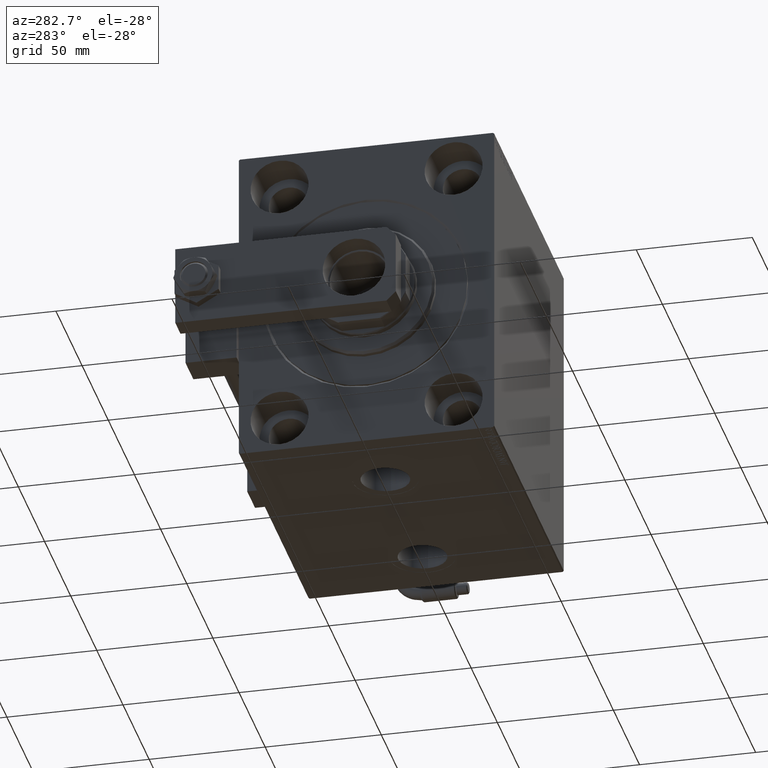
[diagram: clean part render]
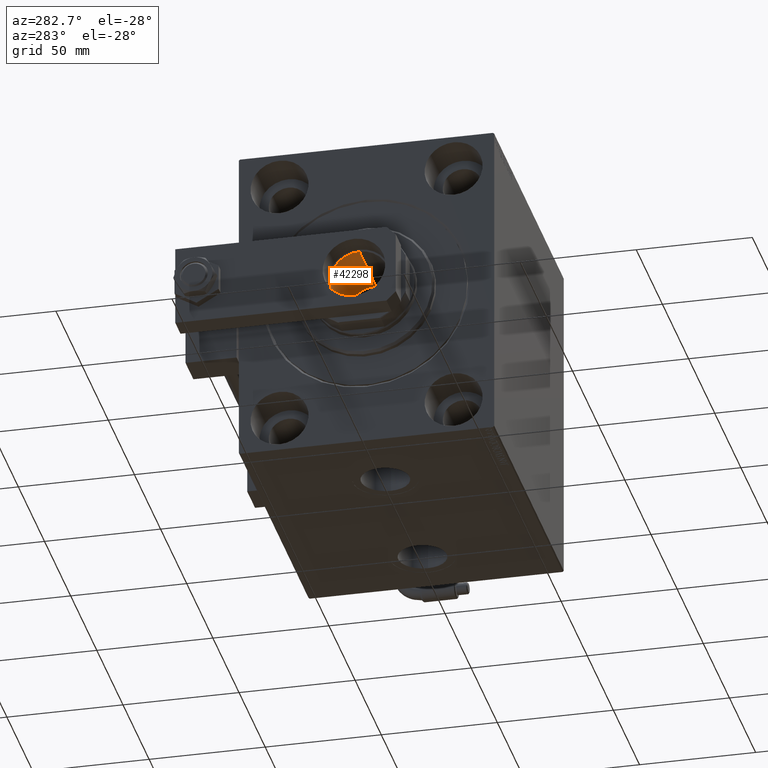
[diagram: same view with one face highlighted and labeled with its STEP entity id]
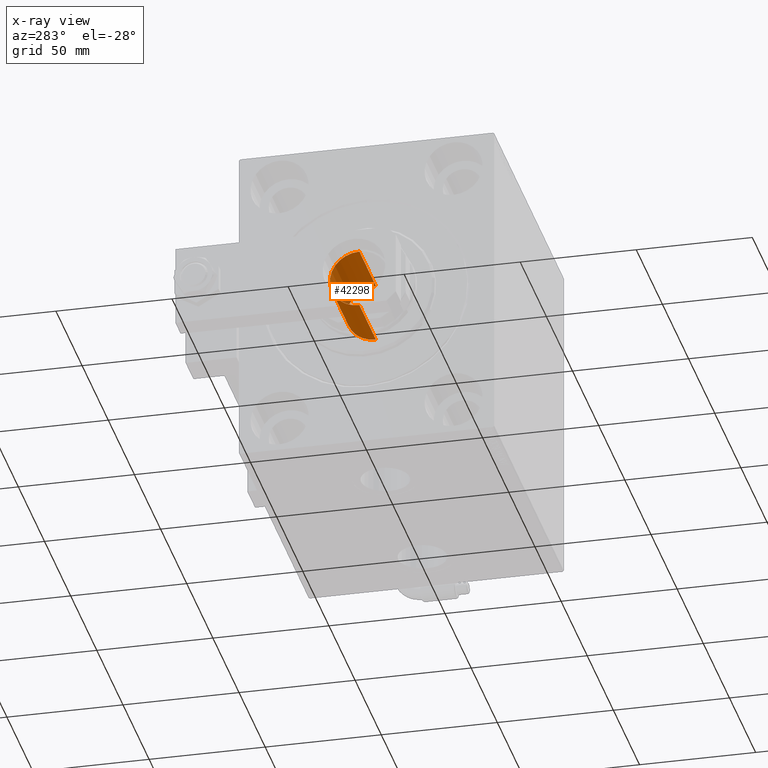
[diagram: x-ray of the same camera — body ghosted, the highlighted face saturated]
A machine part, auxiliary view. The second image highlights one B-rep face of the part: STEP entity #42298.
The next image is the same camera in x-ray: the body ghosted, the highlighted face saturated — about 4% of this face is hidden behind the body in this view.
In plain terms, the highlighted cylindrical surface (edge-blend (fillet) strip) has radius 12.75 mm, axis along (-1, 0, 0).
Its self-contained STEP definition (entity closure, byte-faithful):
#1869 = VECTOR ( 'NONE', #25007, 1000.000000000000000 ) ;
#4053 = CARTESIAN_POINT ( 'NONE',  ( -12.74999999999999645, 1.561424668912874717E-15, 126.0000000000000000 ) ) ;
#4207 = VERTEX_POINT ( 'NONE', #45219 ) ;
#4280 = AXIS2_PLACEMENT_3D ( 'NONE', #16252, #22086, #34051 ) ;
#8818 = CARTESIAN_POINT ( 'NONE',  ( 12.74999999999999645, 0.000000000000000000, 126.0000000000000000 ) ) ;
#9891 = EDGE_CURVE ( 'NONE', #4207, #15054, #50866, .T. ) ;
#11744 = CARTESIAN_POINT ( 'NONE',  ( 0.000000000000000000, 0.000000000000000000, 126.0000000000000000 ) ) ;
#11754 = ORIENTED_EDGE ( 'NONE', *, *, #36369, .F. ) ;
#12680 = ORIENTED_EDGE ( 'NONE', *, *, #12918, .F. ) ;
#12918 = EDGE_CURVE ( 'NONE', #48123, #15054, #40157, .T. ) ;
#13127 = EDGE_CURVE ( 'NONE', #39583, #4207, #48620, .T. ) ;
#15054 = VERTEX_POINT ( 'NONE', #36587 ) ;
#16252 = CARTESIAN_POINT ( 'NONE',  ( 0.000000000000000000, 0.000000000000000000, 125.6999999999999744 ) ) ;
#20324 = AXIS2_PLACEMENT_3D ( 'NONE', #11744, #23440, #27438 ) ;
#22086 = DIRECTION ( 'NONE',  ( 0.000000000000000000, 0.000000000000000000, 1.000000000000000000 ) ) ;
#22761 = ORIENTED_EDGE ( 'NONE', *, *, #9891, .T. ) ;
#23440 = DIRECTION ( 'NONE',  ( -0.000000000000000000, -0.000000000000000000, 1.000000000000000000 ) ) ;
#25007 = DIRECTION ( 'NONE',  ( -0.000000000000000000, -0.000000000000000000, 1.000000000000000000 ) ) ;
#27438 = DIRECTION ( 'NONE',  ( 1.000000000000000000, 0.000000000000000000, 0.000000000000000000 ) ) ;
#29360 = CARTESIAN_POINT ( 'NONE',  ( 0.000000000000000000, 0.000000000000000000, 94.00000000000000000 ) ) ;
#34051 = DIRECTION ( 'NONE',  ( 1.000000000000000000, 0.000000000000000000, 0.000000000000000000 ) ) ;
#34087 = VECTOR ( 'NONE', #39382, 1000.000000000000000 ) ;
#34122 = DIRECTION ( 'NONE',  ( 1.000000000000000000, 0.000000000000000000, 0.000000000000000000 ) ) ;
#35554 = CARTESIAN_POINT ( 'NONE',  ( 12.74999999999999467, 0.000000000000000000, 94.00000000000000000 ) ) ;
#36369 = EDGE_CURVE ( 'NONE', #39583, #48123, #43134, .T. ) ;
#36587 = CARTESIAN_POINT ( 'NONE',  ( -12.74999999999999645, 1.561424668912874717E-15, 125.6999999999999744 ) ) ;
#39071 = ORIENTED_EDGE ( 'NONE', *, *, #13127, .T. ) ;
#39382 = DIRECTION ( 'NONE',  ( -0.000000000000000000, -0.000000000000000000, 1.000000000000000000 ) ) ;
#39583 = VERTEX_POINT ( 'NONE', #35554 ) ;
#40157 = LINE ( 'NONE', #4053, #34087 ) ;
#42173 = CARTESIAN_POINT ( 'NONE',  ( -12.74999999999999467, 1.561424668912874519E-15, 94.00000000000000000 ) ) ;
#42298 = ADVANCED_FACE ( 'NONE', ( #48090 ), #43361, .F. ) ;
#43134 = CIRCLE ( 'NONE', #49873, 12.74999999999999467 ) ;
#43361 = CYLINDRICAL_SURFACE ( 'NONE', #20324, 12.74999999999999645 ) ;
#45219 = CARTESIAN_POINT ( 'NONE',  ( 12.74999999999999645, 0.000000000000000000, 125.6999999999999744 ) ) ;
#45520 = DIRECTION ( 'NONE',  ( -0.000000000000000000, -0.000000000000000000, 1.000000000000000000 ) ) ;
#45827 = EDGE_LOOP ( 'NONE', ( #12680, #11754, #39071, #22761 ) ) ;
#48090 = FACE_OUTER_BOUND ( 'NONE', #45827, .T. ) ;
#48123 = VERTEX_POINT ( 'NONE', #42173 ) ;
#48620 = LINE ( 'NONE', #8818, #1869 ) ;
#49873 = AXIS2_PLACEMENT_3D ( 'NONE', #29360, #45520, #34122 ) ;
#50866 = CIRCLE ( 'NONE', #4280, 12.74999999999999645 ) ;